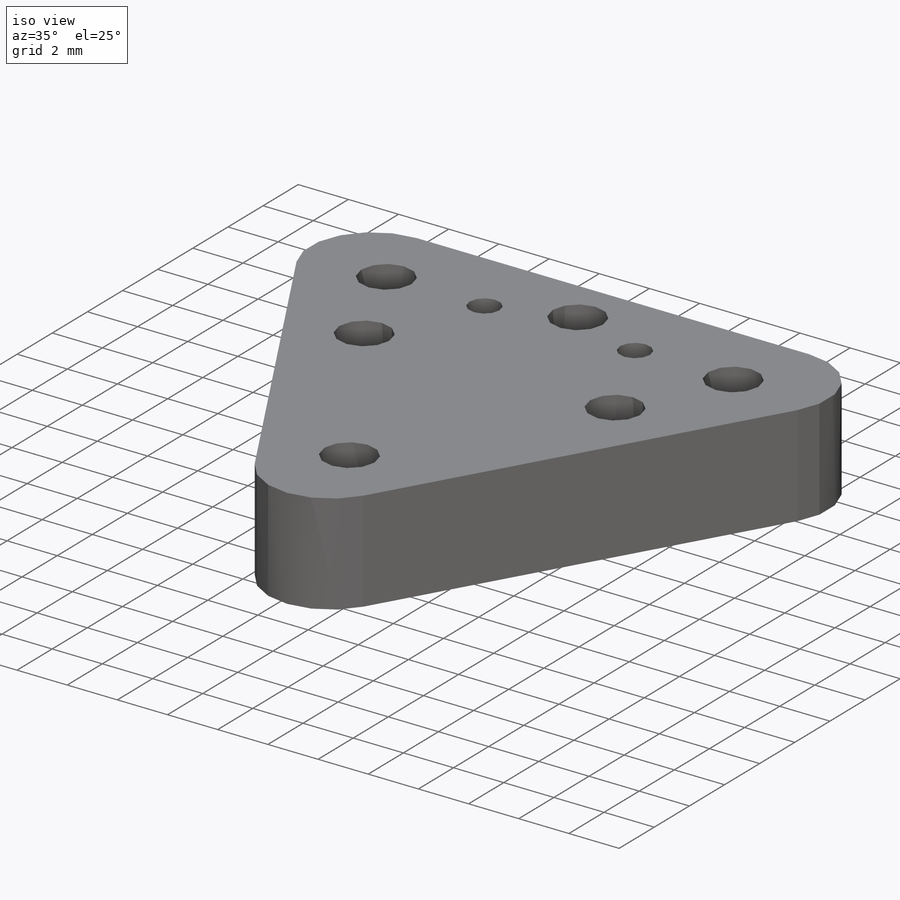
[diagram: iso view]
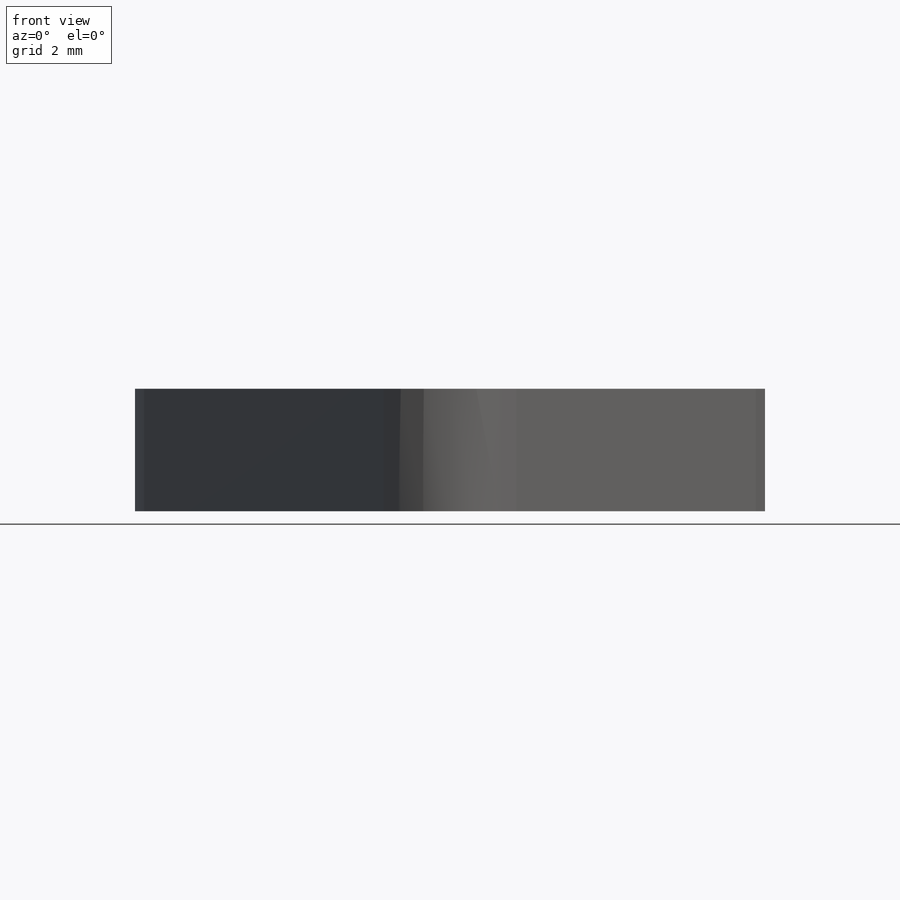
[diagram: front view]
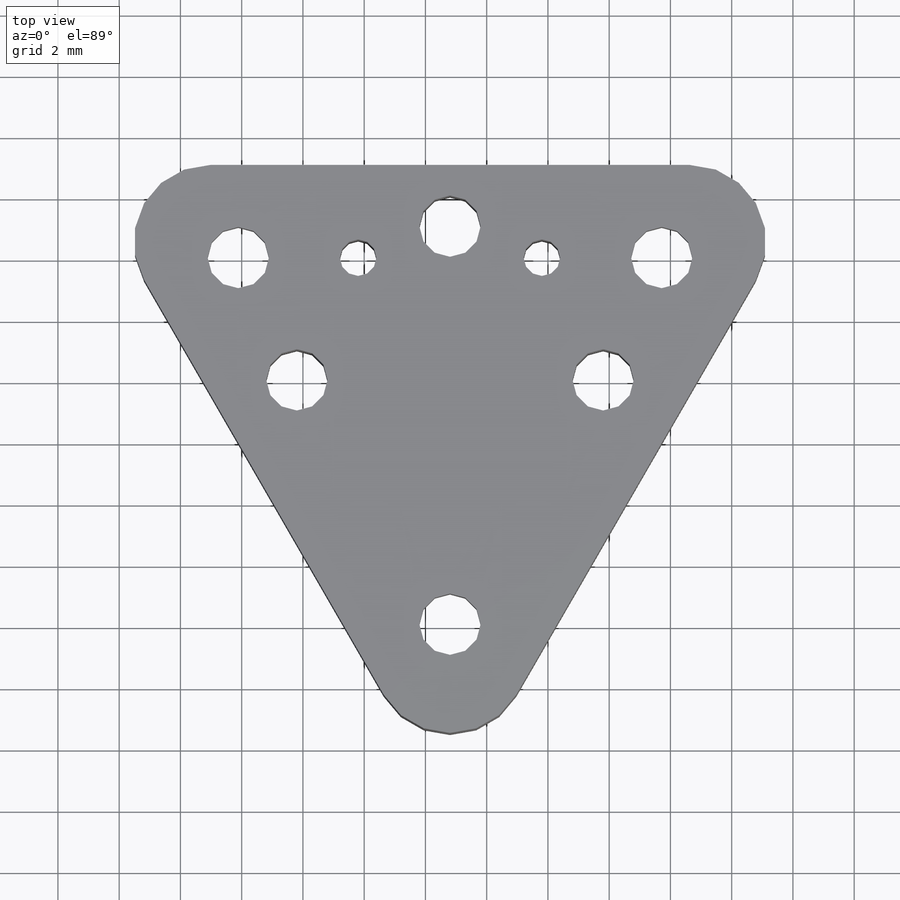
[diagram: top view]
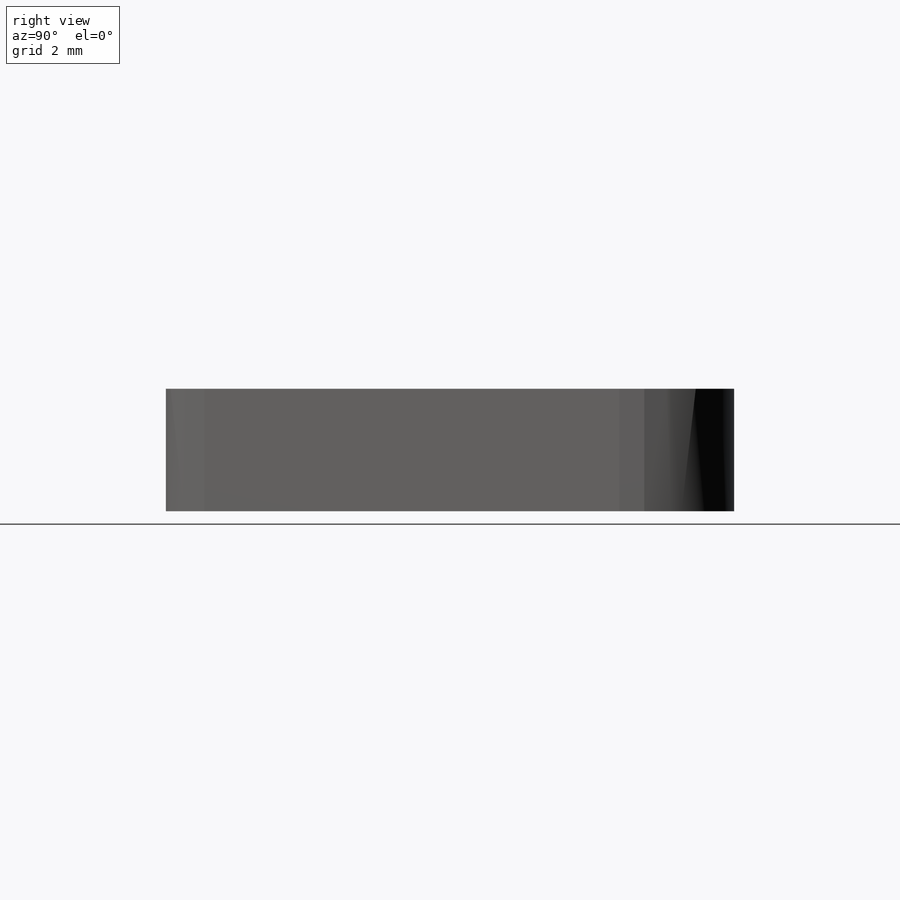
[diagram: right view]
SOLIDWORKS PART (.sldprt)
format: sldprt  version: not decoded by parser v0  size: 533,504 bytes
history: native  units: mm
features: sketch x10, hole x3, material x1, extrude x1, cut_extrude x1 (+15 scaffold rows collapsed)
feature tree (31):
  scaffold x15  (default folders/planes/origin — collapsed)
  material  "Chrome Stainless Steel"
  sketch  "Sketch1"  dims[c1.D1=4.7625mm c1.D5=1.0mm c1.D9=4.7625mm c1.D10=4.7625mm c1.D11=2.0mm c1.D12=2.5mm c2.D5=2.0mm c2.D13=2.0mm c2.D2=~14.352682mm c3.D2=300.0deg c3.D3=~13.069491mm c4.D3=60.0deg c4.D4=~7.545674mm c5.D4=60.0deg c6.D4=24.3078mm c6.D6=~8.917862mm c6.D7=~9.953438mm c6.D8=15.0mm c7.D6=15.0mm]
  extrude  "Extrude1"  Depth=4mm
  cut_extrude  "Extrude4"  [1 undecoded]
  sketch  "Sketch1<3>"  dims[D1=2.0mm]
  sketch  "Sketch2"
  hole  "M2x0.4 Tapped Hole1"  Diameter=1.6mm Depth=3mm
  sketch  "3DSketch1"
  sketch  "Sketch3"  dims[hole-wizard template sketch: 47 standard entries collapsed; hole parameters kept: c15.Tap Drill Depth=3.0mm c15.D3=~14.816244mm c15.Drill Angle=118.0deg]
  hole  "Ø2.0 (2) Diameter Hole1"  Diameter=2mm Depth=10mm
  sketch  "3DSketch2"  dims[c1.D1=~1.174504mm c1.D4=2.0mm c1.D2=~1.114242mm c2.D1=2.0mm c2.D3=2.0mm c3.D1=~9.525586mm c3.D6=7.0mm c3.D2=~9.525586mm c4.D1=7.0mm c4.D4=~4.344899mm c5.D1=4.0mm c5.D5=~4.344899mm c6.D1=7.02mm c6.D2=5.0mm c6.D4=7.02mm c6.D5=5.0mm]
  sketch  "Sketch4"  dims[hole-wizard template sketch: 50 standard entries collapsed; hole parameters above]
  sketch  "Sketch6"
  hole  "#0-80 Tapped Hole2"  Diameter=1.19126mm Depth=4mm
  sketch  "3DSketch4"  dims[D1=3.0mm D2=3.0mm D3=3.03mm D4=3.03mm]
  sketch  "Sketch7"  dims[hole-wizard template sketch: 60 standard entries collapsed; hole parameters kept: c18.Thru Tap Drill Depth=4.0mm c18.BallDiameter=10.0mm]
decode coverage: 11 of 15 modeling features carry decoded parameters
note: ~ marks probable driven/reference dimensions
note: 1 parameter value undecoded
note: suppression state not decoded; provenance and decode notes live in map.json
